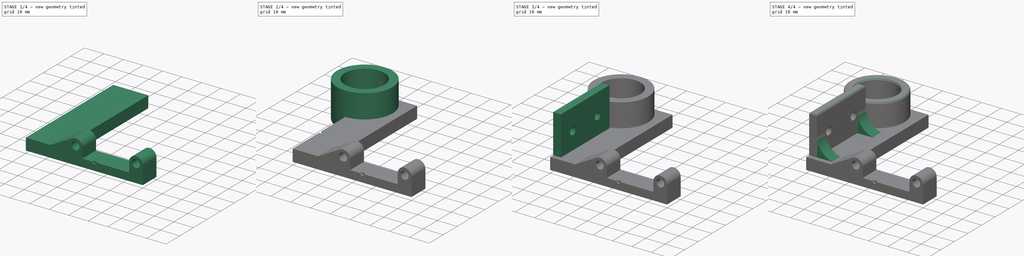
[diagram: build sequence overview — one tinted view per stage of 4, left to right]
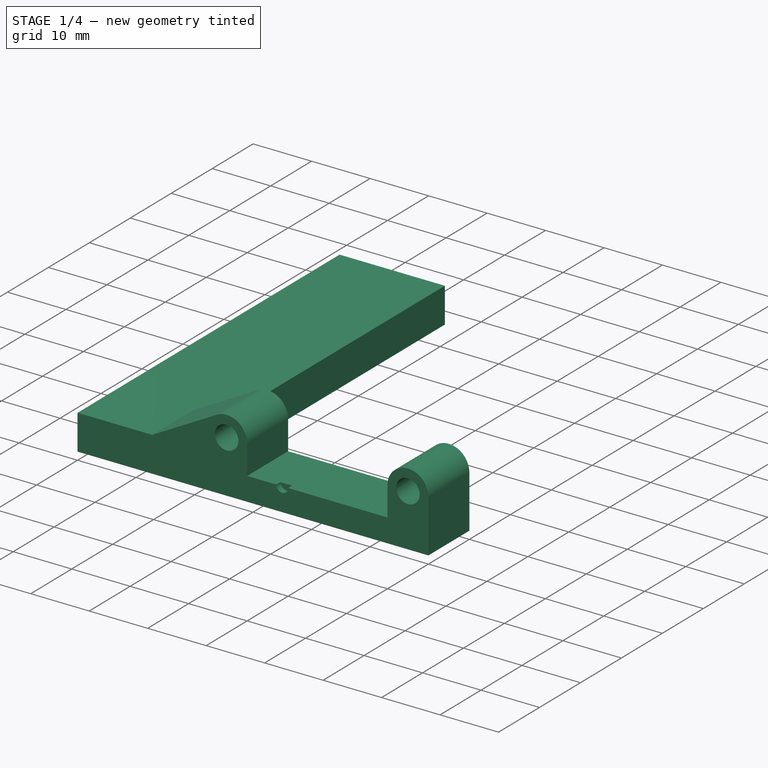
[diagram: stage 1 of 4 — iso view after this stage's code; geometry added in this stage tinted green]
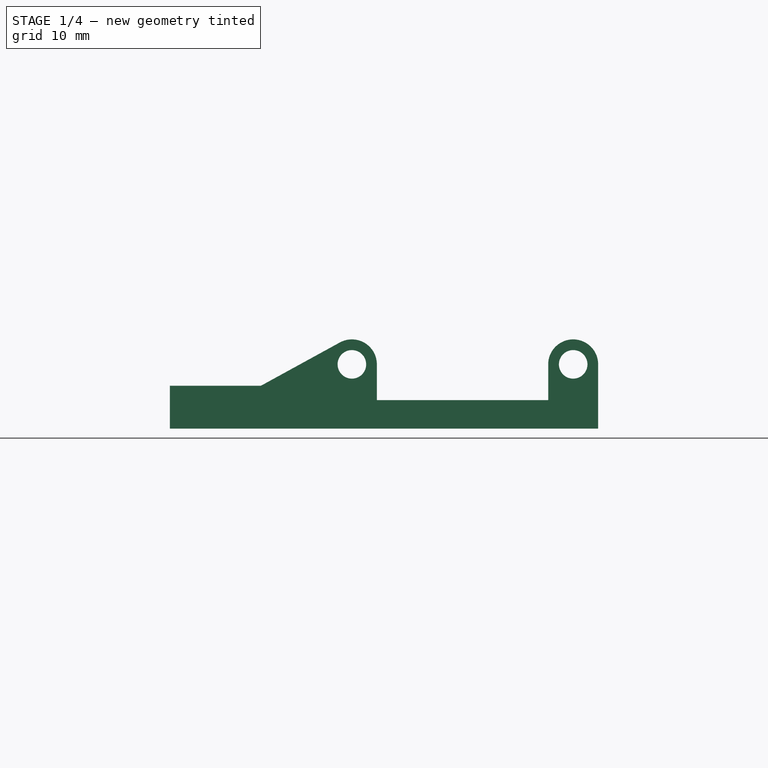
[diagram: stage 1 of 4 — front view after this stage's code; geometry added in this stage tinted green]
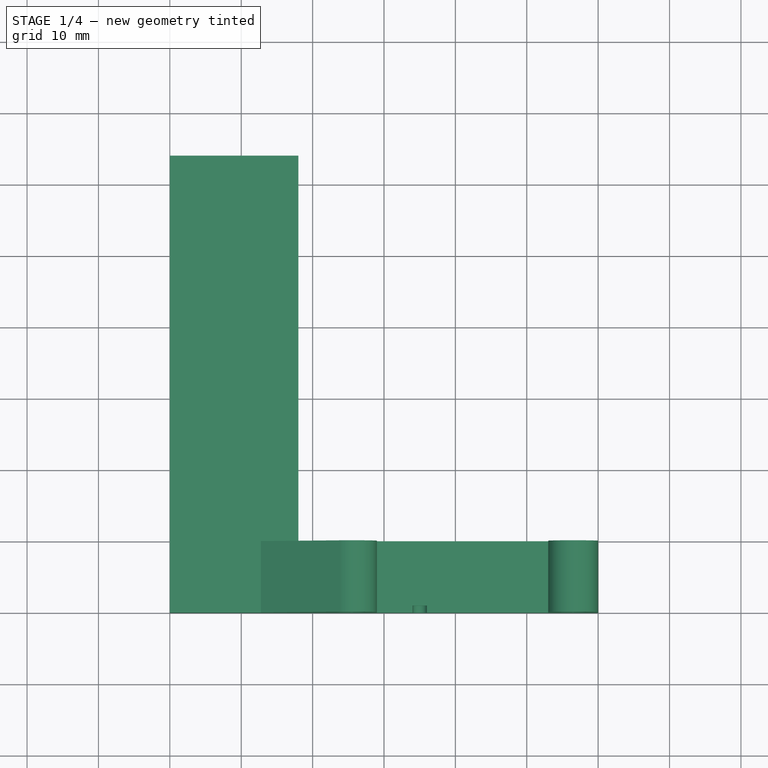
[diagram: stage 1 of 4 — top view after this stage's code; geometry added in this stage tinted green]
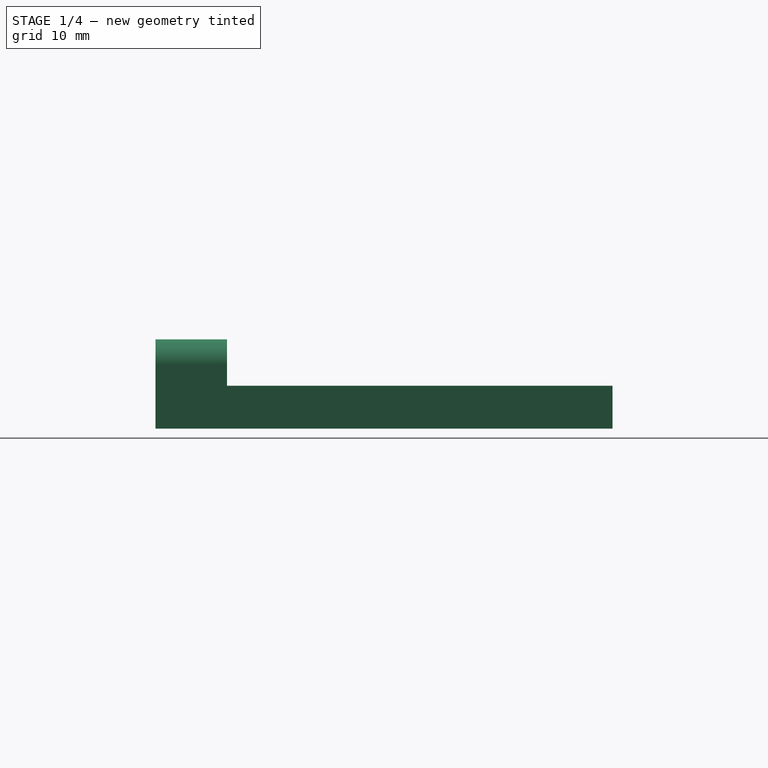
[diagram: stage 1 of 4 — right view after this stage's code; geometry added in this stage tinted green]
FCSTD DOCUMENT  (FreeCAD 0.19R24267 (Git))
Label: ProbeAndFanHolder
License: All rights reserved
LicenseURL: http://en.wikipedia.org/wiki/All_rights_reserved
objects: Sketcher::SketchObject×11, PartDesign::Pad×6, PartDesign::Pocket×5, Spreadsheet::Sheet×3, PartDesign::Fillet×1, PartDesign::Body×1
note: 36 computed .brp shape members not serialized (recipe doc carries the construction recipe); baked Part::Feature solids carry a one-line shape summary decoded from their .brp

FEATURE [Spreadsheet::Sheet] Spreadsheet  label="M3"
  cells = A1=M3ThreadRadius; B1(M3ThreadRadius)==1.25mm; A2=M3HeadRadius; B2(M3HeadRadius)==2.75mm; A3=M3HeadHeight; B3(M3HeadHeight)==3mm; A4=M3NutFlatToFlat_S; B4(M3NutFlatToFlat_S)==5.5mm; A5=M3NutThickness; B5(M3NutThickness)==2.4mm; A6=M3ThreadThroughholeRadius; B6(M3ThreadThroughholeRadius)==2mm
FEATURE [Spreadsheet::Sheet] Spreadsheet001  label="Nema17"
  cells = A1=BodyWidth; B1(BodyWidth)==42.3mm; A2=BodyLength; B2(BodyLength)==42.3mm; A3=BodyHeight34mm; B3(BodyHeight34mm)==34mm; A4=ScrewSeparation; B4(ScrewSeparation)==31mm; A5=DamperSupportHeight; B5(DamperSupportHeight)==2mm; A6=DamperSupportDiameter; B6(DamperSupportDiameter)==22mm; A7=ShaftLength; B7(ShaftLength)==24mm; A8=ShaftDiameter; B8(ShaftDiameter)==5mm; A9=PlugHeight; B9(PlugHeight)==12mm; A10=PlugWidth; B10(PlugWidth)==16mm; A11=PlugLength; B11(PlugLength)==6.5mm; A12=BodyInsideTaper; B12(BodyInsideTaper)==34mm
FEATURE [Sketcher::SketchObject] Sketch  label="Sketch_Holder"
  FullyConstrained = true
  MapMode = 5
  Placement = pos=(0,0,0) rot=(1,0,0;1.5708rad)
  Support = -> [XZ_Plane]
  expr: Constraints[10] = <<Dimensions>>.ScrewDomeRadius
  expr: Constraints[9] = <<M3>>.M3ThreadThroughholeRadius
  expr: Constraints[8] = <<M3>>.M3ThreadThroughholeRadius
  expr: Constraints[11] = <<Dimensions>>.ScrewDomeRadius
  expr: Constraints[13] = <<Nema17>>.ScrewSeparation
  expr: Constraints[7] = <<Dimensions>>.HolderDepth
  expr: Constraints[20] = <<Dimensions>>.HolderHeightUnderRadiator
  expr: Constraints[30] = <<Dimensions>>.HolderDepthToSlope
  expr: Constraints[28] = <<Dimensions>>.HolderHeight
  expr: Constraints[23] = <<Dimensions>>.HolderHeightToScrewholeCentre
  sketch-geometry (12):
    g0: LineSegment StartX=60 StartY=0 StartZ=0 EndX=0 EndY=0 EndZ=0
    g1: LineSegment StartX=0 StartY=0 StartZ=0 EndX=0 EndY=6 EndZ=0
    g2: LineSegment StartX=60 StartY=9 StartZ=0 EndX=60 EndY=0 EndZ=0
    g3: ArcOfCircle CenterX=56.5 CenterY=9 CenterZ=0 NormalX=0 NormalY=0 NormalZ=1 AngleXU=0 Radius=3.5 StartAngle=0 EndAngle=3.14159
    g4: ArcOfCircle CenterX=25.5 CenterY=9 CenterZ=0 NormalX=0 NormalY=0 NormalZ=1 AngleXU=0 Radius=3.5 StartAngle=1e-16 EndAngle=2.07239
    g5: Circle CenterX=56.5 CenterY=9 CenterZ=0 NormalX=0 NormalY=0 NormalZ=1 AngleXU=0 Radius=2
    g6: Circle CenterX=25.5 CenterY=9 CenterZ=0 NormalX=0 NormalY=0 NormalZ=1 AngleXU=0 Radius=2
    g7: LineSegment StartX=53 StartY=9 StartZ=0 EndX=53 EndY=4 EndZ=0
    g8: LineSegment StartX=29 StartY=9 StartZ=0 EndX=29 EndY=4 EndZ=0
    g9: LineSegment StartX=29 StartY=4 StartZ=0 EndX=53 EndY=4 EndZ=0
    g10: LineSegment StartX=12.75 StartY=6 StartZ=0 EndX=23.8171 EndY=12.0689 EndZ=0
    g11: LineSegment StartX=12.75 StartY=6 StartZ=0 EndX=0 EndY=6 EndZ=0
  constraints (33):
    c: Coincident(g0,g1)
    c: Coincident(g2,g0)
    c: Horizontal(g0)
    c: Vertical(g1)
    c: Vertical(g2)
    c: PointOnObject(g0,g-1)
    c: Coincident(g5,g3)
    c: DistanceX(g0,g0) = 60
    c: Radius(g5) = 2
    c: Radius(g6) = 2
    c: Radius(g3) = 3.5
    c: Radius(g4) = 3.5
    c: Vertical(g0,g-1)
    c: DistanceX(g6,g3) = 31
    c: Coincident(g3,g2)
    c: Coincident(g4,g6)
    c: Horizontal(g2,g3)
    c: Coincident(g7,g9)
    c: Vertical(g8)
    c: Vertical(g7)
    c: DistanceY(g0,g9) = 4
    c: Tangent(g8,g4) = 1.5708
    c: Tangent(g7,g3) = -1.5708
    c: DistanceY(g0,g3) = 9
    c: Horizontal(g4,g3)
    c: Coincident(g11,g10)
    c: Coincident(g11,g1)
    c: Horizontal(g11)
    c: DistanceY(g1,g1) = 6
    c: Tangent(g10,g4) = 1.5708
    c: DistanceX(g11,g11) = 12.75
    c: Coincident(g9,g8)
    c: Horizontal(g9)
FEATURE [PartDesign::Pad] Pad  label="Pad_Holder"
  AllowMultiFace = false
  Direction = (1,1,1)
  Length = 10
  Length2 = 100
  Placement = pos=(0,0,0) rot=(1,0,0;1.5708rad)
  Profile = -> Sketch
  Type = 0
  expr: Length = <<Dimensions>>.HolderWidth
FEATURE [Sketcher::SketchObject] Sketch001  label="Sketch_FanMount"
  AttachmentOffset = pos=(0,0,-2.2) rot=(0,0,1;0rad)
  FullyConstrained = true
  MapMode = 5
  Placement = pos=(0,-7.8,-1.7e-15) rot=(1,0,0;1.5708rad)
  Support = -> [Pad]
  expr: Constraints[9] = <<Dimensions>>.FanHolderHeight
  expr: Constraints[10] = <<Dimensions>>.FanHolderDepth
  expr: Constraints[11] = <<Dimensions>>.HolderHeight
  expr: .AttachmentOffset.Base.z = -<<Dimensions>>.FanMountShiftFromSide
  sketch-geometry (4):
    g0: LineSegment StartX=0 StartY=6 StartZ=0 EndX=4 EndY=6 EndZ=0
    g1: LineSegment StartX=4 StartY=6 StartZ=0 EndX=4 EndY=26 EndZ=0
    g2: LineSegment StartX=4 StartY=26 StartZ=0 EndX=0 EndY=26 EndZ=0
    g3: LineSegment StartX=0 StartY=26 StartZ=0 EndX=0 EndY=6 EndZ=0
  constraints (12):
    c: Coincident(g0,g1)
    c: Coincident(g1,g2)
    c: Coincident(g2,g3)
    c: Coincident(g3,g0)
    c: Horizontal(g0)
    c: Horizontal(g2)
    c: Vertical(g1)
    c: Vertical(g3)
    c: PointOnObject(g0,g-2)
    c: DistanceY(g0,g2) = 20
    c: DistanceX(g0,g0) = 4
    c: DistanceY(g-1,g0) = 6
FEATURE [Sketcher::SketchObject] Sketch002  label="Sketch_Grabber"
  FullyConstrained = true
  MapMode = 5
  Placement = pos=(0,0,0) rot=(-1,0,0;1.5708rad)
  Support = -> [Pad]
  expr: Constraints[9] = <<Dimensions>>.HolderHeight
  expr: Constraints[10] = <<Dimensions>>.GrabberDepth
  sketch-geometry (4):
    g0: LineSegment StartX=0 StartY=0 StartZ=0 EndX=18 EndY=0 EndZ=0
    g1: LineSegment StartX=18 StartY=0 StartZ=0 EndX=18 EndY=-6 EndZ=0
    g2: LineSegment StartX=18 StartY=-6 StartZ=0 EndX=0 EndY=-6 EndZ=0
    g3: LineSegment StartX=0 StartY=-6 StartZ=0 EndX=0 EndY=0 EndZ=0
  constraints (11):
    c: Coincident(g0,g1)
    c: Coincident(g1,g2)
    c: Coincident(g2,g3)
    c: Coincident(g3,g0)
    c: Horizontal(g0)
    c: Horizontal(g2)
    c: Vertical(g1)
    c: Vertical(g3)
    c: Coincident(g0,g-1)
    c: DistanceY(g2,g0) = 6
    c: DistanceX(g0,g0) = 18
FEATURE [Spreadsheet::Sheet] Spreadsheet003  label="Dimensions"
  cells = A1=HolderDepth; B1(HolderDepth)==60mm; A2=HolderDepthToSlope; B2(HolderDepthToSlope)==(HolderDepth - ScrewDomeRadius - <<Nema17>>.ScrewSeparation) / 2; A3=HolderHeight; B3(HolderHeight)==6mm; A4=HolderHeightUnderRadiator; B4(HolderHeightUnderRadiator)==4mm; A5=HolderHeightToScrewholeCentre; B5(HolderHeightToScrewholeCentre)==9mm; A6=HolderWidth; B6(HolderWidth)==10mm; A7=ScrewDomeRadius; B7(ScrewDomeRadius)==3.5mm; A8=FanHolderHeight; B8(FanHolderHeight)==20mm; A9=FanHolderDepth; B9(FanHolderDepth)==4mm; A10=FanHolderwidth; B10(FanHolderwidth)==(HolderWidth + PrintheadToGrabberRight - FanMountShiftFromSide) * 2; A11=GrabberDepth; B11(GrabberDepth)==18mm; A12=GrabberLength; B12(GrabberLength)==54mm; A13=ProbeHolderOuterRadius; B13(ProbeHolderOuterRadius)==14mm; A14=ProbeHolderToGrabberRight; B14(ProbeHolderToGrabberRight)==GrabberLength - ProbeHolderOuterRadius + (ProbeHolderOuterRadius - ProbeHolderInnerRadius) / 2; A15=ProbeHolderToGrabberDepth; B15(ProbeHolderToGrabberDepth)==GrabberDepth; A16=ProbeHolderInnerRadius; B16(ProbeHolderInnerRadius)==10mm; A17=ProbeHolderHeight; B17(ProbeHolderHeight)==13mm; A18=FanMountScrewHeightFromFront; B18(FanMountScrewHeightFromFront)==15mm; A19=FanMountScrew1FromSide; B19(FanMountScrew1FromSide)==HolderWidth - FanMountShiftFromSide - FanMountSupportWidth - <<M3>>.M3HeadRadius; A20=FanMountScrew2FromSide; B20(FanMountScrew2FromSide)==HolderWidth - FanHolderwidth + FanMountSupportWidth + <<M3>>.M3HeadRadius - FanMountShiftFromSide; A21=PrintheadToHolderBack; B21(PrintheadToHolderBack)==25mm; A22=PrintheadMarkerRadius; B22(PrintheadMarkerRadius)==1mm; A23=PrintheadToGrabberRight; B23(PrintheadToGrabberRight)==20mm - HolderWidth; A24=PrintheadMarkerDepth; B24(PrintheadMarkerDepth)==1mm; A25=FanMountSupportDepth; B25(FanMountSupportDepth)==HolderDepth - HolderDepthToSlope; A26=FanMountSupportHeight; B26(FanMountSupportHeight)==FanHolderHeight / 2; A27=FanMountSupportWidth; B27(FanMountSupportWidth)==6mm; A28=FanMountShiftFromSide; B28(FanMountShiftFromSide)==2.2mm; A29=HolderBaseToHotheadBottom; B29(HolderBaseToHotheadBottom)==23mm; A30=HotheadBottomToHeadTip; B30(HotheadBottomToHeadTip)==10mm
FEATURE [Sketcher::SketchObject] Sketch007  label="Sketch_PrintheadMarkerToHolder"
  FullyConstrained = true
  MapMode = 5
  Placement = pos=(0,-10,-2.2e-15) rot=(1,0,0;1.5708rad)
  Support = -> [Pad]
  expr: Constraints[3] = <<Dimensions>>.HolderDepth - <<Dimensions>>.PrintheadToHolderBack
  expr: Constraints[4] = <<Dimensions>>.HolderHeightUnderRadiator
  expr: Constraints[5] = <<Dimensions>>.PrintheadMarkerRadius
  sketch-geometry (2):
    g0: ArcOfCircle CenterX=35 CenterY=4 CenterZ=0 NormalX=0 NormalY=0 NormalZ=1 AngleXU=0 Radius=1 StartAngle=3.14159 EndAngle=6.28319
    g1: LineSegment StartX=34 StartY=4 StartZ=0 EndX=36 EndY=4 EndZ=0
  constraints (7):
    c: Coincident(g1,g0)
    c: Coincident(g1,g0)
    c: Horizontal(g1)
    c: DistanceX(g0) = 35
    c: DistanceY(g-1,g0) = 4
    c: Radius(g0) = 1
    c: Horizontal(g0,g0)
FEATURE [PartDesign::Pocket] Pocket004  label="Pocket_PrintheadMarkerToHolder"
  AllowMultiFace = false
  BaseFeature = -> Pad
  Length = 1
  Length2 = 100
  Placement = pos=(0,0,0) rot=(1,0,0;1.5708rad)
  Profile = -> Sketch007
  Type = 0
  expr: Length = <<Dimensions>>.PrintheadMarkerDepth
FEATURE [PartDesign::Pad] Pad002  label="Pad_Grabber"
  AllowMultiFace = false
  BaseFeature = -> Pocket004
  Direction = (1,1,1)
  Length = 54
  Length2 = 100
  Placement = pos=(0,0,0) rot=(1,0,0;1.5708rad)
  Profile = -> Sketch002
  Type = 0
  expr: Length = <<Dimensions>>.GrabberLength
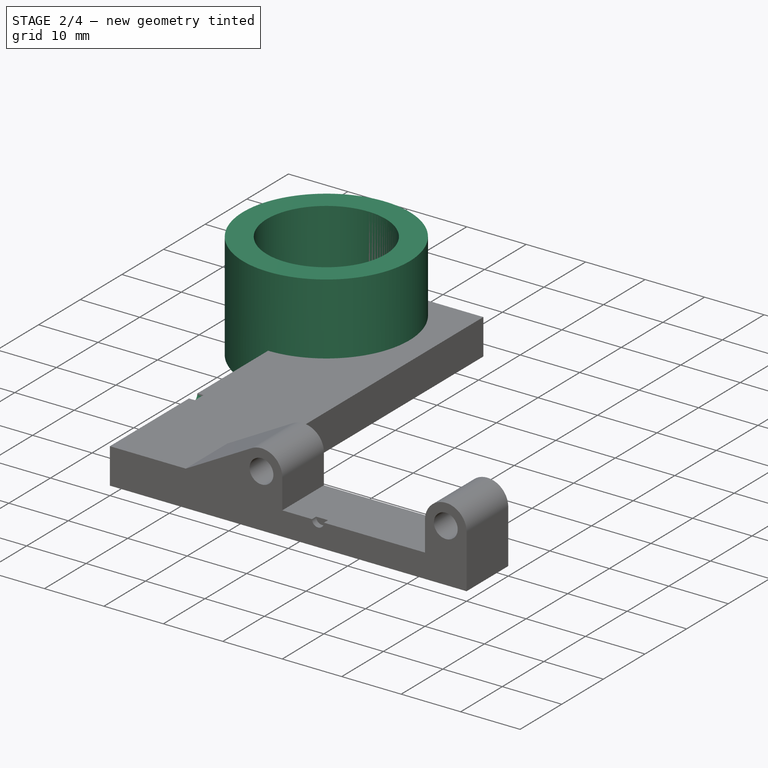
[diagram: stage 2 of 4 — iso view after this stage's code; geometry added in this stage tinted green]
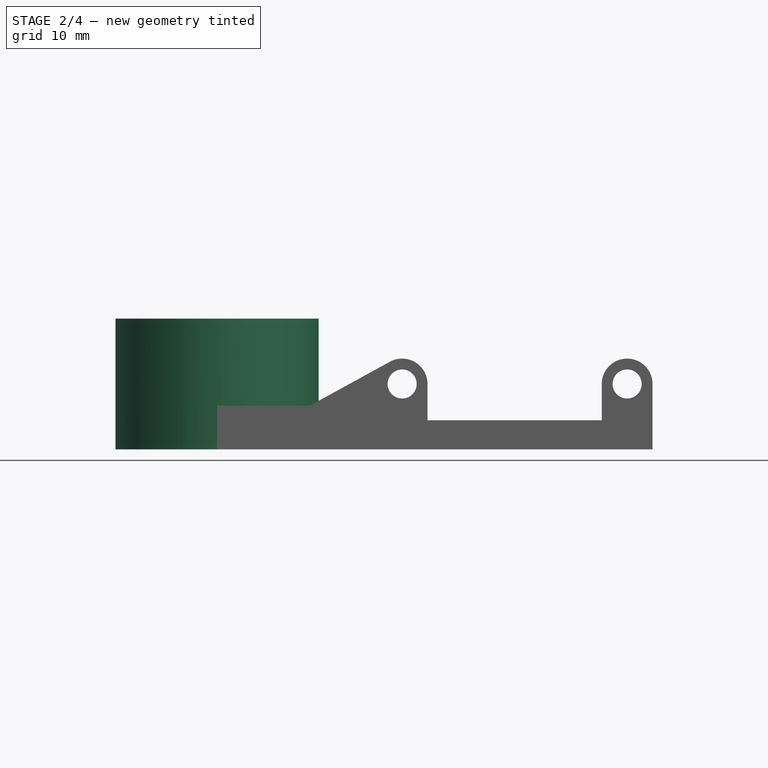
[diagram: stage 2 of 4 — front view after this stage's code; geometry added in this stage tinted green]
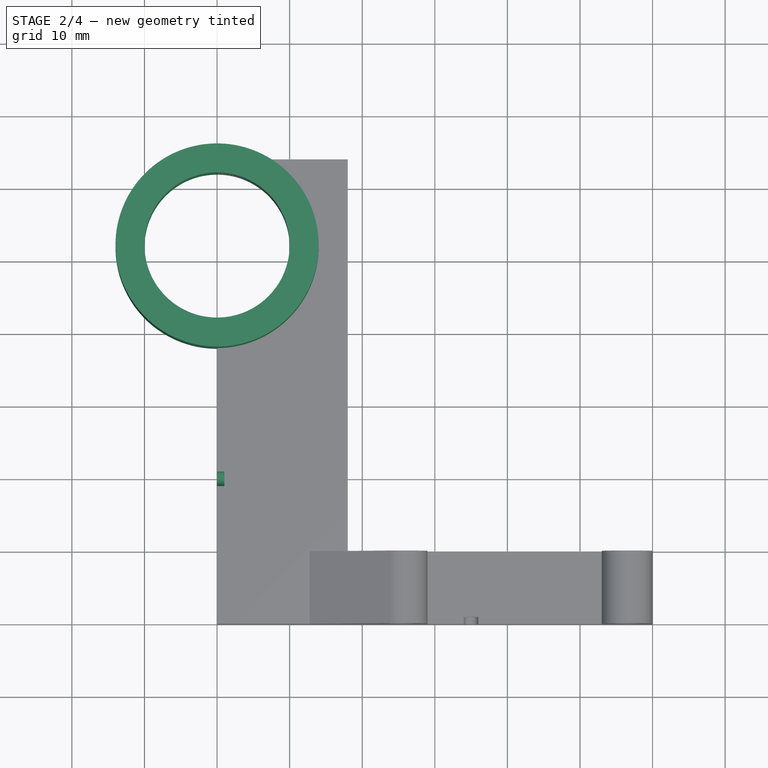
[diagram: stage 2 of 4 — top view after this stage's code; geometry added in this stage tinted green]
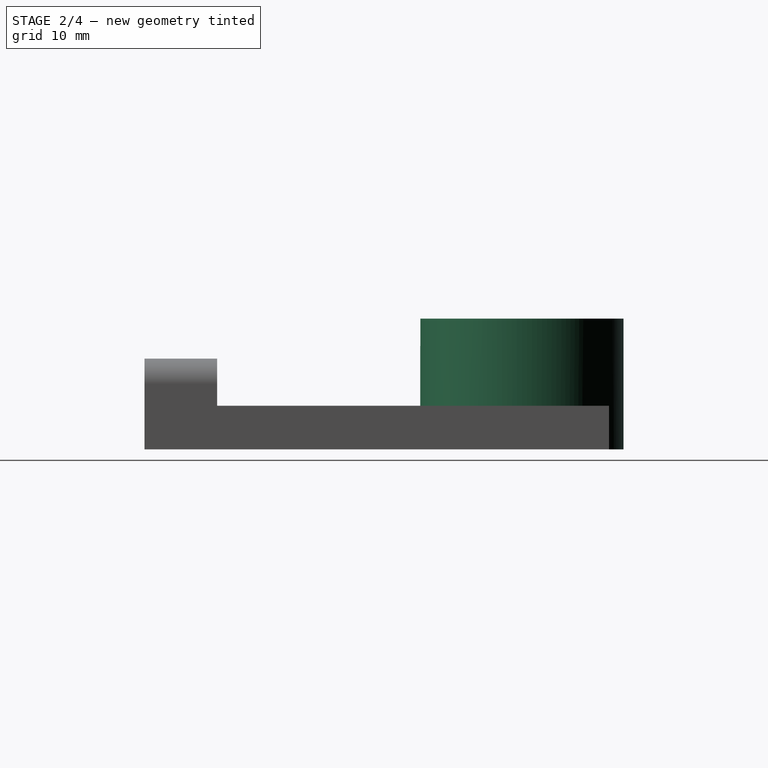
[diagram: stage 2 of 4 — right view after this stage's code; geometry added in this stage tinted green]
FEATURE [Sketcher::SketchObject] Sketch003  label="Sketch_ProbeHolderOuterWall"
  FullyConstrained = true
  MapMode = 5
  Placement = pos=(0,0,0) rot=(1,0,0;3.14159rad)
  Support = -> [Pad002]
  expr: Constraints[1] = <<Dimensions>>.ProbeHolderOuterRadius
  expr: Constraints[2] = <<Dimensions>>.ProbeHolderToGrabberRight
  sketch-geometry (1):
    g0: Circle CenterX=0 CenterY=-42 CenterZ=0 NormalX=0 NormalY=0 NormalZ=1 AngleXU=0 Radius=14
  constraints (3):
    c: PointOnObject(g0,g-2)
    c: Radius(g0) = 14
    c: DistanceY(g0,g-1) = 42
FEATURE [Sketcher::SketchObject] Sketch004  label="Sketch_ProbeHolderInnerHole"
  FullyConstrained = true
  MapMode = 5
  Placement = pos=(0,0,0) rot=(1,0,0;3.14159rad)
  Support = -> [Pad002]
  expr: Constraints[1] = <<Dimensions>>.ProbeHolderInnerRadius
  expr: Constraints[2] = <<Dimensions>>.ProbeHolderToGrabberRight
  sketch-geometry (1):
    g0: Circle CenterX=0 CenterY=-42 CenterZ=0 NormalX=0 NormalY=0 NormalZ=1 AngleXU=0 Radius=10
  constraints (3):
    c: PointOnObject(g0,g-2)
    c: Radius(g0) = 10
    c: DistanceY(g0,g-1) = 42
FEATURE [Sketcher::SketchObject] Sketch008  label="Sketch_PrintheadMarkerToGrabber"
  FullyConstrained = true
  MapMode = 5
  Placement = pos=(0,0,0) rot=(0.707107,0,-0.707107;3.14159rad)
  Support = -> [Pad002]
  expr: Constraints[4] = <<Dimensions>>.PrintheadMarkerRadius
  expr: Constraints[5] = <<Dimensions>>.HolderHeight
  expr: Constraints[6] = <<Dimensions>>.PrintheadToGrabberRight
  sketch-geometry (2):
    g0: LineSegment StartX=-6 StartY=-9 StartZ=0 EndX=-6 EndY=-11 EndZ=0
    g1: ArcOfCircle CenterX=-6 CenterY=-10 CenterZ=0 NormalX=0 NormalY=0 NormalZ=1 AngleXU=0 Radius=1 StartAngle=4.71239 EndAngle=7.85398
  constraints (7):
    c: PointOnObject(g1,g0)
    c: Coincident(g1,g0)
    c: Vertical(g0)
    c: Coincident(g0,g1)
    c: Radius(g1) = 1
    c: DistanceX(g1,g-1) = 6
    c: DistanceY(g1,g-1) = 10
FEATURE [PartDesign::Pocket] Pocket005  label="Pocket_PrintheadMarkerToGrabber"
  AllowMultiFace = false
  BaseFeature = -> Pad002
  Length = 1
  Length2 = 100
  Placement = pos=(0,0,0) rot=(1,0,0;1.5708rad)
  Profile = -> Sketch008
  Type = 0
  expr: Length = <<Dimensions>>.PrintheadMarkerDepth
FEATURE [PartDesign::Pad] Pad003  label="Pad_ProbeHolderOuterWall"
  AllowMultiFace = false
  BaseFeature = -> Pocket005
  Direction = (1,1,1)
  Length = 18
  Length2 = 100
  Placement = pos=(0,0,0) rot=(1,0,0;1.5708rad)
  Profile = -> Sketch003
  Reversed = true
  Type = 0
  expr: Length = <<Dimensions>>.ProbeHolderToGrabberDepth
FEATURE [PartDesign::Pocket] Pocket  label="Pocket_ProbeHolderInnerHole"
  AllowMultiFace = false
  BaseFeature = -> Pad003
  Length = 5
  Length2 = 100
  Placement = pos=(0,0,0) rot=(1,0,0;1.5708rad)
  Profile = -> Sketch004
  Type = 1
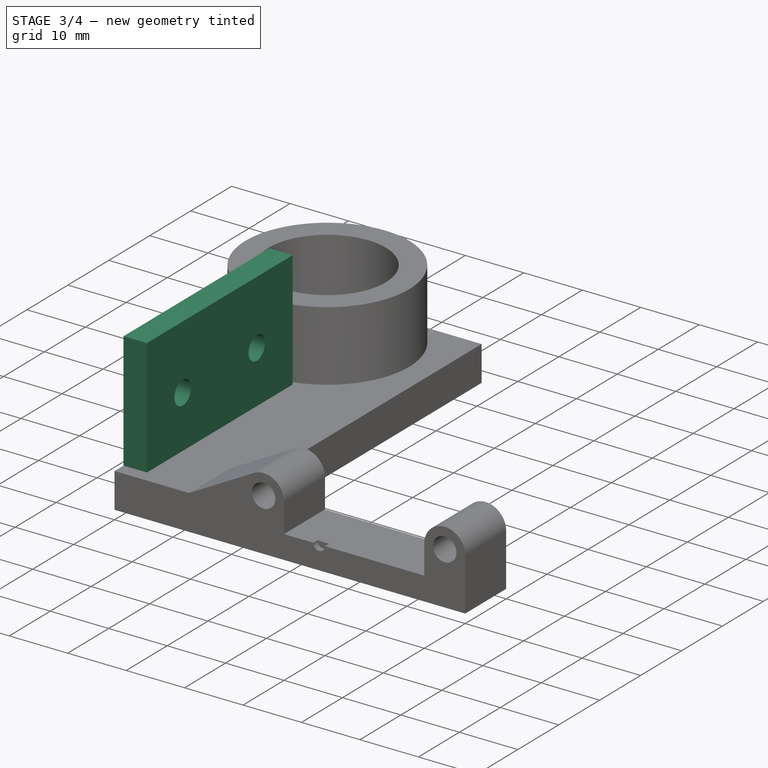
[diagram: stage 3 of 4 — iso view after this stage's code; geometry added in this stage tinted green]
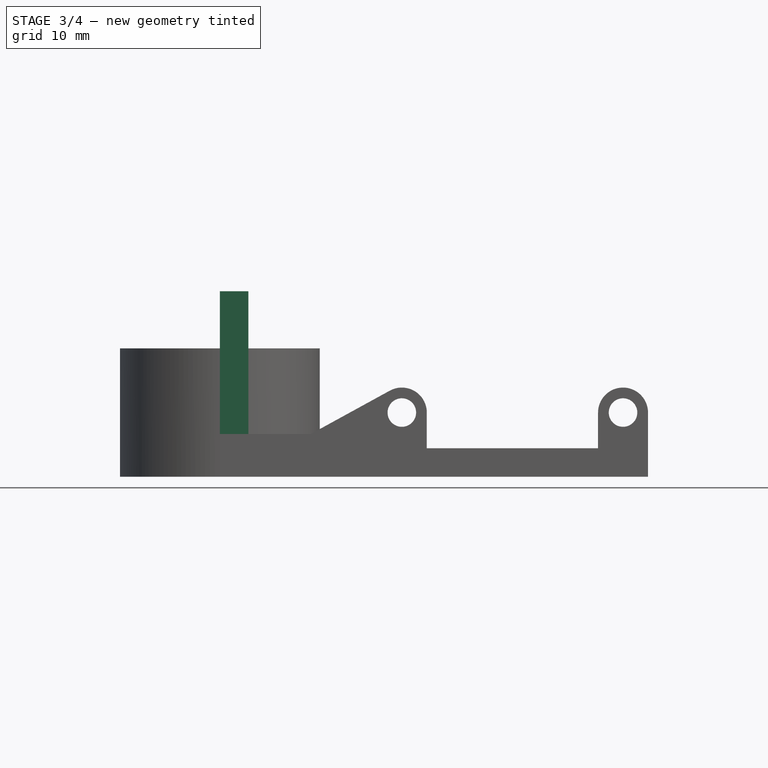
[diagram: stage 3 of 4 — front view after this stage's code; geometry added in this stage tinted green]
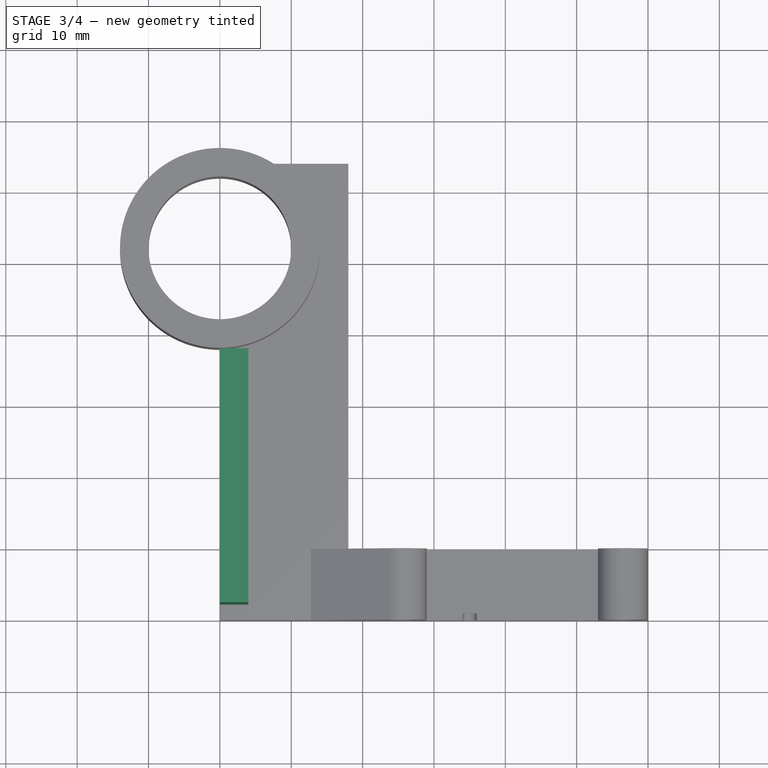
[diagram: stage 3 of 4 — top view after this stage's code; geometry added in this stage tinted green]
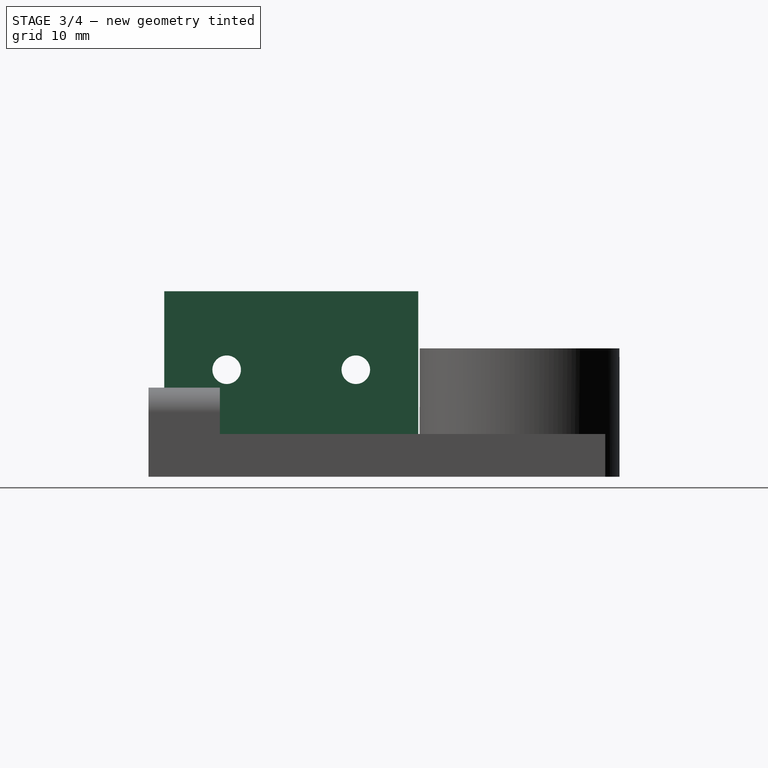
[diagram: stage 3 of 4 — right view after this stage's code; geometry added in this stage tinted green]
FEATURE [PartDesign::Pad] Pad001  label="Pad_FanMount"
  AllowMultiFace = false
  BaseFeature = -> Pocket
  Direction = (1,1,1)
  Length = 35.6
  Length2 = 100
  Placement = pos=(0,0,0) rot=(1,0,0;1.5708rad)
  Profile = -> Sketch001
  Reversed = true
  Type = 0
  expr: Length = <<Dimensions>>.FanHolderwidth
FEATURE [Sketcher::SketchObject] Sketch005  label="Sketch_FanHolderScrewHole1"
  FullyConstrained = true
  MapMode = 5
  Placement = pos=(0,0,0) rot=(0.707107,0,-0.707107;3.14159rad)
  Support = -> [Pad001]
  expr: Constraints[0] = <<M3>>.M3ThreadThroughholeRadius
  expr: Constraints[1] = <<Dimensions>>.FanMountScrewHeightFromFront
  expr: Constraints[2] = <<Dimensions>>.FanMountScrew1FromSide
  sketch-geometry (1):
    g0: Circle CenterX=-15 CenterY=-0.95 CenterZ=0 NormalX=0 NormalY=0 NormalZ=1 AngleXU=0 Radius=2
  constraints (3):
    c: Radius(g0) = 2
    c: DistanceX(g0,g-1) = 15
    c: DistanceY(g-1,g0) = -0.95
FEATURE [PartDesign::Pocket] Pocket001  label="Pocket_FanHolderScrewHole1"
  AllowMultiFace = false
  BaseFeature = -> Pad001
  Length = 0
  Length2 = 100
  Placement = pos=(0,0,0) rot=(1,0,0;1.5708rad)
  Profile = -> Sketch005
  Type = 2
FEATURE [Sketcher::SketchObject] Sketch006  label="Sketch_FanHolderScrewHole2"
  FullyConstrained = true
  MapMode = 5
  Placement = pos=(0,0,0) rot=(0.707107,0,-0.707107;3.14159rad)
  Support = -> [Pad001]
  expr: Constraints[0] = <<M3>>.M3ThreadThroughholeRadius
  expr: Constraints[1] = <<Dimensions>>.FanMountScrewHeightFromFront
  expr: Constraints[2] = -<<Dimensions>>.FanMountScrew2FromSide
  sketch-geometry (1):
    g0: Circle CenterX=-15 CenterY=-19.05 CenterZ=0 NormalX=0 NormalY=0 NormalZ=1 AngleXU=0 Radius=2
  constraints (3):
    c: Radius(g0) = 2
    c: DistanceX(g0,g-1) = 15
    c: DistanceY(g0,g-1) = 19.05
FEATURE [PartDesign::Pocket] Pocket002  label="Pocket_FanHolderScrewHole2"
  AllowMultiFace = false
  BaseFeature = -> Pocket001
  Length = 0
  Length2 = 100
  Placement = pos=(0,0,0) rot=(1,0,0;1.5708rad)
  Profile = -> Sketch006
  Type = 2
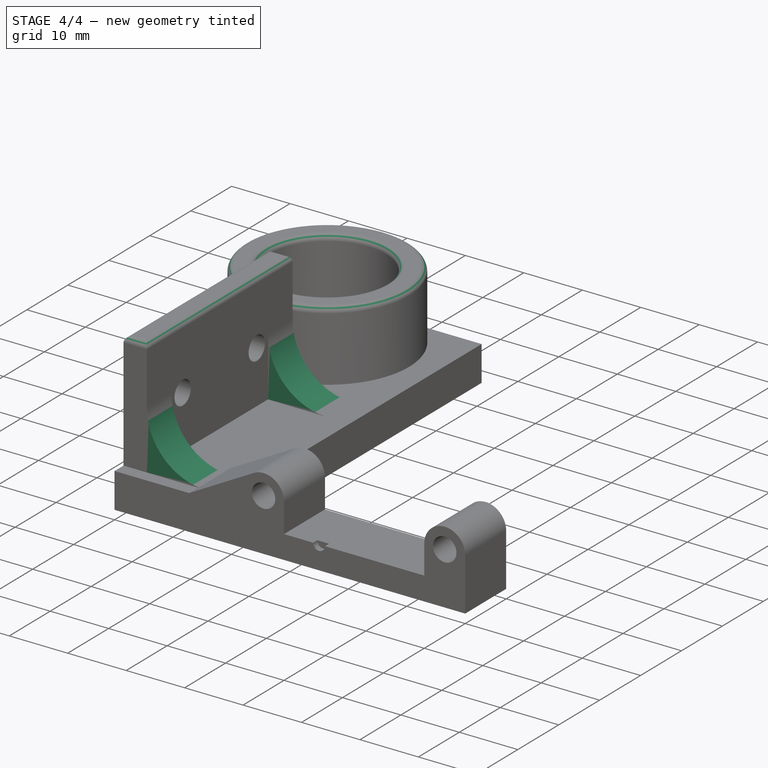
[diagram: stage 4 of 4 — iso view after this stage's code; geometry added in this stage tinted green]
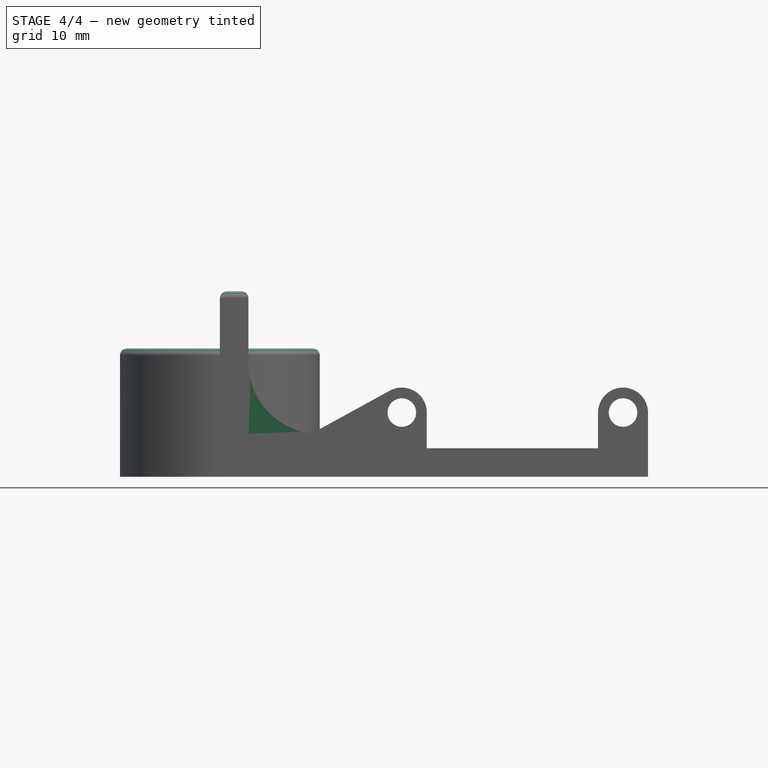
[diagram: stage 4 of 4 — front view after this stage's code; geometry added in this stage tinted green]
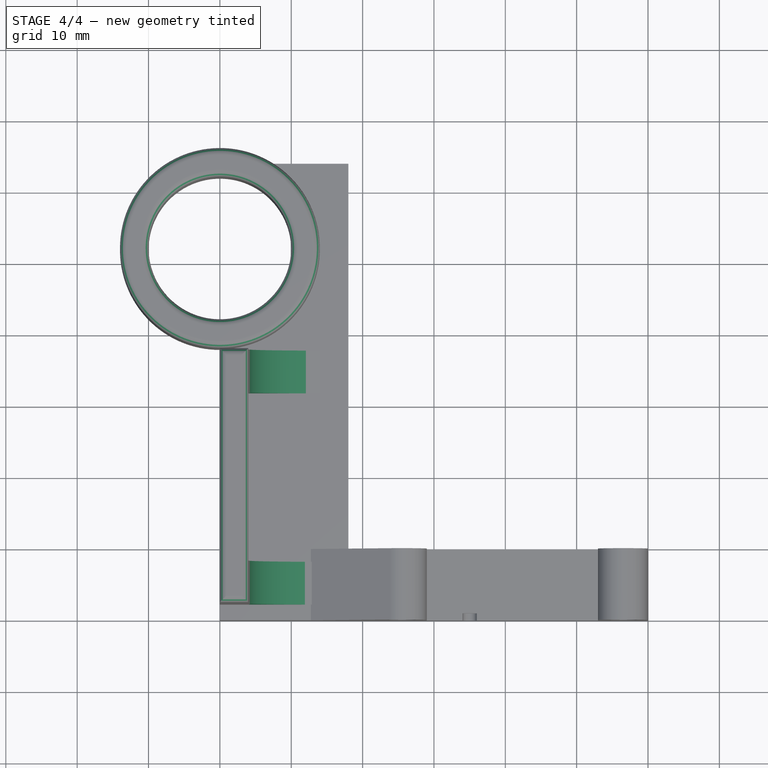
[diagram: stage 4 of 4 — top view after this stage's code; geometry added in this stage tinted green]
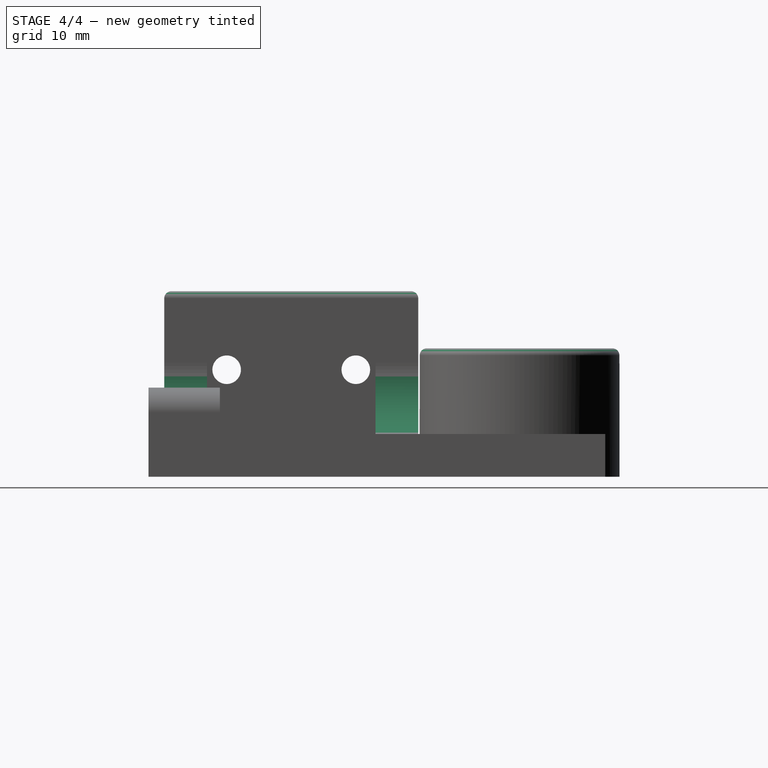
[diagram: stage 4 of 4 — right view after this stage's code; geometry added in this stage tinted green]
FEATURE [Sketcher::SketchObject] Sketch009  label="Sketch_FanMountSupport1"
  FullyConstrained = true
  MapMode = 5
  Placement = pos=(0,-7.8,-2.1e-15) rot=(1,0,0;1.5708rad)
  Support = -> [Pad001]
  expr: Constraints[5] = <<Dimensions>>.HolderHeight
  expr: Constraints[6] = <<Dimensions>>.FanHolderDepth
  expr: Constraints[7] = <<Dimensions>>.FanMountSupportHeight
  sketch-geometry (3):
    g0: LineSegment StartX=4 StartY=16 StartZ=0 EndX=4 EndY=6 EndZ=0
    g1: LineSegment StartX=4 StartY=6 StartZ=0 EndX=14 EndY=6 EndZ=0
    g2: ArcOfCircle CenterX=14 CenterY=16 CenterZ=0 NormalX=0 NormalY=0 NormalZ=1 AngleXU=0 Radius=10 StartAngle=3.14159 EndAngle=4.71239
  constraints (8):
    c: Vertical(g0)
    c: Horizontal(g1)
    c: Tangent(g2,g0) = -1.5708
    c: Tangent(g2,g1) = -1.5708
    c: Coincident(g1,g0)
    c: DistanceY(g-1,g0) = 6
    c: DistanceX(g-1,g0) = 4
    c: DistanceY(g0,g0) = 10
FEATURE [PartDesign::Pad] Pad004  label="Pad_FanMountSupport1"
  AllowMultiFace = false
  BaseFeature = -> Pocket002
  Direction = (1,1,1)
  Length = 6
  Length2 = 100
  Placement = pos=(0,0,0) rot=(1,0,0;1.5708rad)
  Profile = -> Sketch009
  Reversed = true
  Type = 0
  expr: Length = <<Dimensions>>.FanMountSupportWidth
FEATURE [Sketcher::SketchObject] Sketch010  label="Sketch_FanMountSupport2"
  FullyConstrained = true
  MapMode = 5
  Placement = pos=(0,27.8,7.4e-15) rot=(-1,0,0;1.5708rad)
  Support = -> [Pad001]
  expr: Constraints[5] = <<Dimensions>>.FanMountSupportHeight
  expr: Constraints[8] = <<Dimensions>>.HolderHeight
  expr: Constraints[9] = <<Dimensions>>.FanHolderDepth
  sketch-geometry (3):
    g0: LineSegment StartX=4 StartY=-16 StartZ=0 EndX=4 EndY=-6 EndZ=0
    g1: LineSegment StartX=4 StartY=-6 StartZ=0 EndX=14 EndY=-6 EndZ=0
    g2: ArcOfCircle CenterX=14 CenterY=-16 CenterZ=0 NormalX=0 NormalY=0 NormalZ=1 AngleXU=0 Radius=10 StartAngle=1.5708 EndAngle=3.14159
  constraints (10):
    c: Vertical(g0)
    c: Coincident(g1,g0)
    c: Horizontal(g1)
    c: Coincident(g2,g0)
    c: Coincident(g2,g1)
    c: DistanceY(g0,g0) = 10
    c: Tangent(g0,g2)
    c: Tangent(g1,g2)
    c: DistanceY(g0,g-1) = 6
    c: DistanceX(g-1,g0) = 4
FEATURE [PartDesign::Pad] Pad005  label="Pad_FanMountSupport2"
  AllowMultiFace = false
  BaseFeature = -> Pad004
  Direction = (1,1,1)
  Length = 6
  Length2 = 100
  Placement = pos=(0,0,0) rot=(1,0,0;1.5708rad)
  Profile = -> Sketch010
  Reversed = true
  Type = 0
  expr: Length = <<Dimensions>>.FanMountSupportWidth
FEATURE [PartDesign::Fillet] Fillet  label="Fillet_FanMount"
  Base = -> Pad005 [Face34,Face39]
  BaseFeature = -> Pad005
  Placement = pos=(0,0,0) rot=(1,0,0;1.5708rad)
  Radius = 1
  SupportTransform = false
FEATURE [PartDesign::Body] Body  label="Probe and Fan Holder"
  Group = -> [Sketch,Pad,Pocket004,Sketch001,Sketch002,Pad002,Pocket005,Sketch003,Pad003,Sketch004,Pocket,Pad001,Sketch005,Pocket001,Sketch006,Pocket002,Sketch007,Sketch008,Sketch009,Pad004,Sketch010,Pad005,Fillet]
  Origin = -> Origin
  Tip = -> Fillet
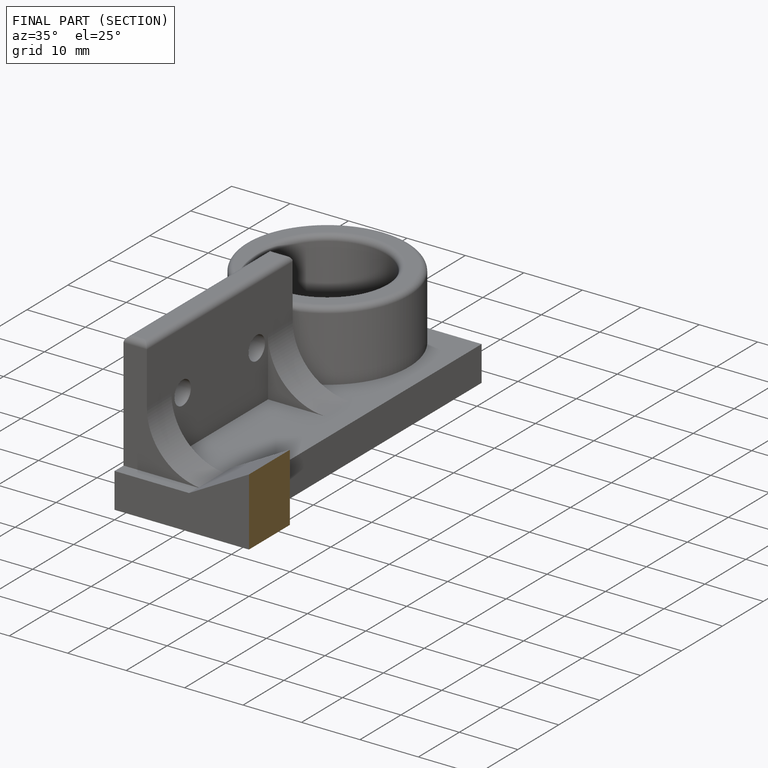
[diagram: finished part — half-section view (interior)]
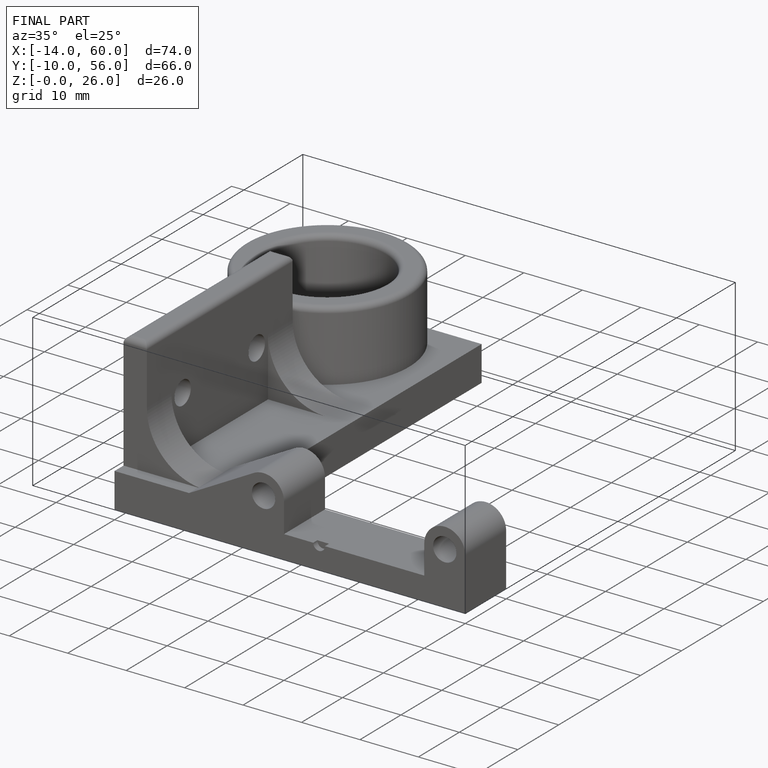
[diagram: finished part — iso view with bounding-box wireframe]
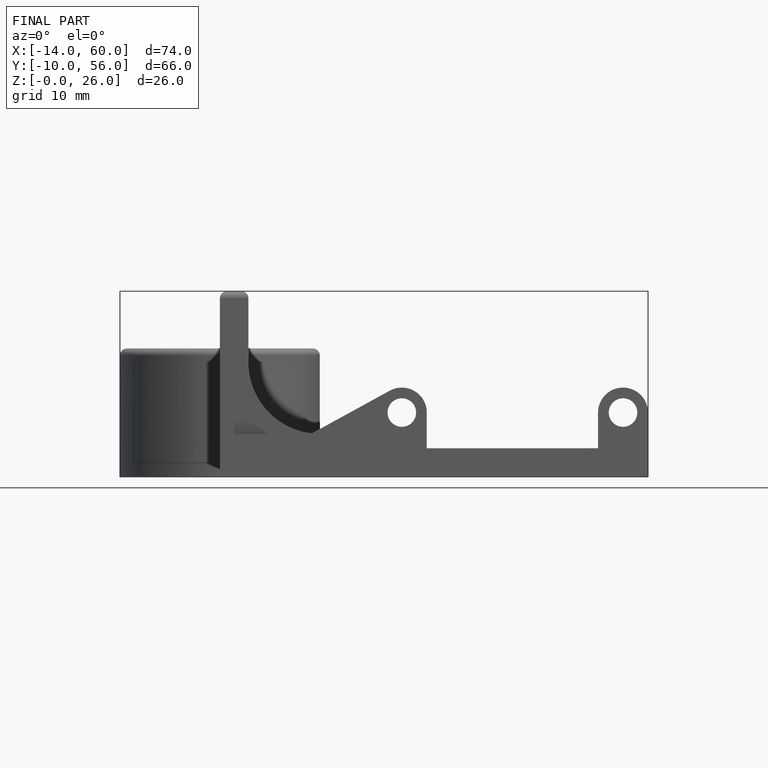
[diagram: finished part — front view with bounding-box wireframe]
